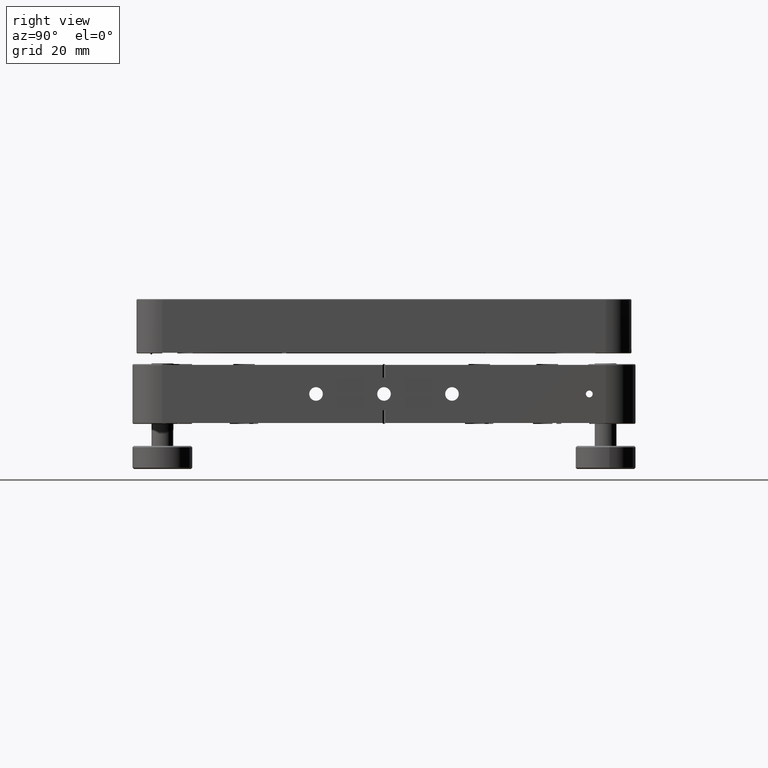
[diagram: clean part render]
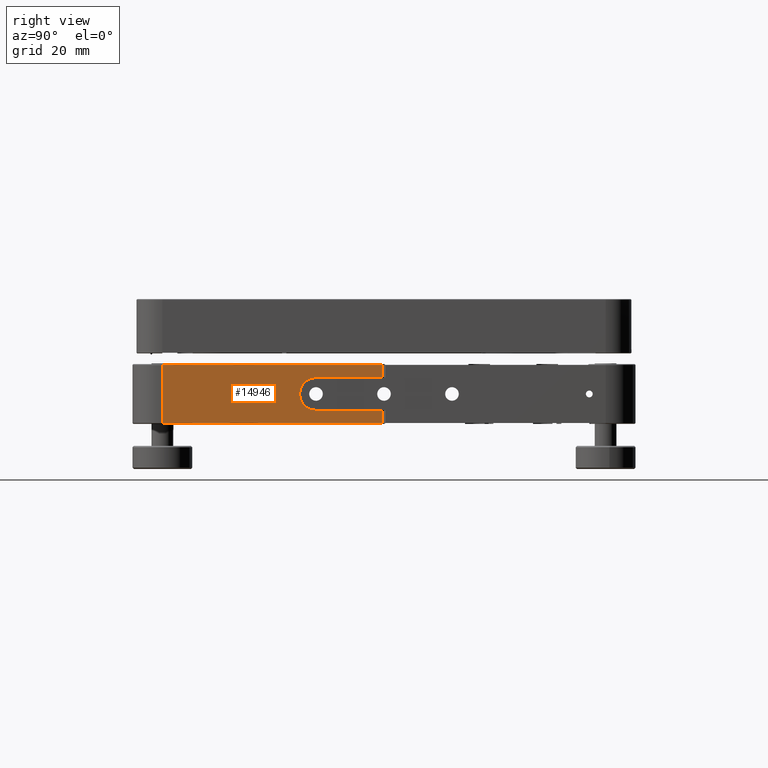
[diagram: same view with one face highlighted and labeled with its STEP entity id]
A machine part, right view. The second image highlights one B-rep face of the part: STEP entity #14946.
In plain terms, the highlighted planar face has unit normal (-1, -0, 0).
Its self-contained STEP definition (entity closure, byte-faithful):
#329 = EDGE_CURVE ( 'NONE', #5612, #5235, #7277, .T. ) ;
#628 = CARTESIAN_POINT ( 'NONE',  ( 92.50000000000000000, -24.99999999999996803, -5.999999999999989342 ) ) ;
#814 = VERTEX_POINT ( 'NONE', #9429 ) ;
#921 = CARTESIAN_POINT ( 'NONE',  ( 92.50000000000000000, -0.4999999999999519829, 11.00000000000000000 ) ) ;
#991 = EDGE_CURVE ( 'NONE', #18576, #2655, #14359, .T. ) ;
#1081 = ORIENTED_EDGE ( 'NONE', *, *, #16079, .T. ) ;
#1551 = VERTEX_POINT ( 'NONE', #8310 ) ;
#2311 = LINE ( 'NONE', #628, #15562 ) ;
#2601 = CARTESIAN_POINT ( 'NONE',  ( 92.50000000000000000, -24.99999999999995381, 6.000000000000008882 ) ) ;
#2655 = VERTEX_POINT ( 'NONE', #4538 ) ;
#3300 = VERTEX_POINT ( 'NONE', #12568 ) ;
#3885 = DIRECTION ( 'NONE',  ( 1.500301384628590126E-16, -1.000000000000000000, 0.000000000000000000 ) ) ;
#4463 = ORIENTED_EDGE ( 'NONE', *, *, #991, .T. ) ;
#4538 = CARTESIAN_POINT ( 'NONE',  ( 92.50000000000000000, -81.49999999999998579, -10.70000000000003304 ) ) ;
#5005 = LINE ( 'NONE', #6199, #15409 ) ;
#5081 = LINE ( 'NONE', #15555, #14984 ) ;
#5235 = VERTEX_POINT ( 'NONE', #2601 ) ;
#5460 = VERTEX_POINT ( 'NONE', #12384 ) ;
#5467 = LINE ( 'NONE', #921, #14409 ) ;
#5470 = CARTESIAN_POINT ( 'NONE',  ( 92.49999999999997158, 92.50000000000000000, 11.00000000000000000 ) ) ;
#5612 = VERTEX_POINT ( 'NONE', #15431 ) ;
#5777 = ORIENTED_EDGE ( 'NONE', *, *, #10244, .T. ) ;
#5823 = ORIENTED_EDGE ( 'NONE', *, *, #15693, .F. ) ;
#6003 = EDGE_CURVE ( 'NONE', #2655, #814, #5005, .T. ) ;
#6199 = CARTESIAN_POINT ( 'NONE',  ( 92.49999999999997158, 92.50000000000000000, -10.70000000000003304 ) ) ;
#6726 = CARTESIAN_POINT ( 'NONE',  ( 92.50000000000000000, -24.99999999999996092, 1.531726841841384132E-14 ) ) ;
#7078 = VECTOR ( 'NONE', #11905, 1000.000000000000000 ) ;
#7243 = DIRECTION ( 'NONE',  ( -1.000000000000000000, -1.500301384628590126E-16, 0.000000000000000000 ) ) ;
#7277 = CIRCLE ( 'NONE', #12643, 5.999999999999999112 ) ;
#7709 = EDGE_LOOP ( 'NONE', ( #5823, #1081, #4463, #9485, #11413, #17113, #11185, #5777 ) ) ;
#8041 = DIRECTION ( 'NONE',  ( 1.500301384628590126E-16, -1.000000000000000000, 0.000000000000000000 ) ) ;
#8310 = CARTESIAN_POINT ( 'NONE',  ( 92.50000000000000000, -0.4999999999999519829, 10.69999999999997620 ) ) ;
#8635 = FACE_OUTER_BOUND ( 'NONE', #7709, .T. ) ;
#9429 = CARTESIAN_POINT ( 'NONE',  ( 92.50000000000000000, -0.4999999999999519829, -10.70000000000003304 ) ) ;
#9485 = ORIENTED_EDGE ( 'NONE', *, *, #6003, .T. ) ;
#9688 = DIRECTION ( 'NONE',  ( -1.000000000000000000, -4.440892098500625176E-16, -0.000000000000000000 ) ) ;
#10017 = DIRECTION ( 'NONE',  ( 0.000000000000000000, 0.000000000000000000, -1.000000000000000000 ) ) ;
#10244 = EDGE_CURVE ( 'NONE', #5235, #3300, #18258, .T. ) ;
#10978 = DIRECTION ( 'NONE',  ( 0.000000000000000000, 0.000000000000000000, -1.000000000000000000 ) ) ;
#11185 = ORIENTED_EDGE ( 'NONE', *, *, #329, .T. ) ;
#11413 = ORIENTED_EDGE ( 'NONE', *, *, #18438, .F. ) ;
#11905 = DIRECTION ( 'NONE',  ( 0.000000000000000000, -0.000000000000000000, -1.000000000000000000 ) ) ;
#12384 = CARTESIAN_POINT ( 'NONE',  ( 92.50000000000000000, -0.4999999999999519829, -5.999999999999994671 ) ) ;
#12430 = DIRECTION ( 'NONE',  ( -1.500301384628590126E-16, 1.000000000000000000, -0.000000000000000000 ) ) ;
#12568 = CARTESIAN_POINT ( 'NONE',  ( 92.50000000000000000, -0.4999999999999553690, 6.000000000000001776 ) ) ;
#12643 = AXIS2_PLACEMENT_3D ( 'NONE', #6726, #9688, #10978 ) ;
#13298 = LINE ( 'NONE', #19213, #7078 ) ;
#14209 = EDGE_CURVE ( 'NONE', #5460, #5612, #2311, .T. ) ;
#14359 = LINE ( 'NONE', #15637, #15815 ) ;
#14409 = VECTOR ( 'NONE', #14568, 1000.000000000000000 ) ;
#14560 = AXIS2_PLACEMENT_3D ( 'NONE', #5470, #7243, #3885 ) ;
#14568 = DIRECTION ( 'NONE',  ( 0.000000000000000000, -0.000000000000000000, -1.000000000000000000 ) ) ;
#14755 = PLANE ( 'NONE',  #14560 ) ;
#14946 = ADVANCED_FACE ( 'NONE', ( #8635 ), #14755, .F. ) ;
#14984 = VECTOR ( 'NONE', #8041, 1000.000000000000000 ) ;
#15409 = VECTOR ( 'NONE', #12430, 1000.000000000000000 ) ;
#15431 = CARTESIAN_POINT ( 'NONE',  ( 92.49999999999998579, -24.99999999999996803, -5.999999999999989342 ) ) ;
#15555 = CARTESIAN_POINT ( 'NONE',  ( 92.50000000000000000, -81.49999999999998579, 10.69999999999997620 ) ) ;
#15562 = VECTOR ( 'NONE', #15755, 1000.000000000000000 ) ;
#15637 = CARTESIAN_POINT ( 'NONE',  ( 92.50000000000000000, -81.49999999999998579, 11.00000000000000000 ) ) ;
#15693 = EDGE_CURVE ( 'NONE', #1551, #3300, #13298, .T. ) ;
#15749 = CARTESIAN_POINT ( 'NONE',  ( 92.50000000000000000, -81.49999999999998579, 10.69999999999997620 ) ) ;
#15755 = DIRECTION ( 'NONE',  ( 2.220446049250312588E-16, -1.000000000000000000, 3.122502256758252277E-16 ) ) ;
#15815 = VECTOR ( 'NONE', #10017, 1000.000000000000000 ) ;
#16079 = EDGE_CURVE ( 'NONE', #1551, #18576, #5081, .T. ) ;
#17043 = VECTOR ( 'NONE', #18353, 1000.000000000000000 ) ;
#17113 = ORIENTED_EDGE ( 'NONE', *, *, #14209, .T. ) ;
#18152 = CARTESIAN_POINT ( 'NONE',  ( 92.50000000000000000, -24.99999999999995381, 6.000000000000008882 ) ) ;
#18258 = LINE ( 'NONE', #18152, #17043 ) ;
#18353 = DIRECTION ( 'NONE',  ( -2.220446049250312834E-16, 1.000000000000000000, -3.122502256758253263E-16 ) ) ;
#18438 = EDGE_CURVE ( 'NONE', #5460, #814, #5467, .T. ) ;
#18576 = VERTEX_POINT ( 'NONE', #15749 ) ;
#19213 = CARTESIAN_POINT ( 'NONE',  ( 92.50000000000000000, -0.4999999999999519829, 11.00000000000000000 ) ) ;